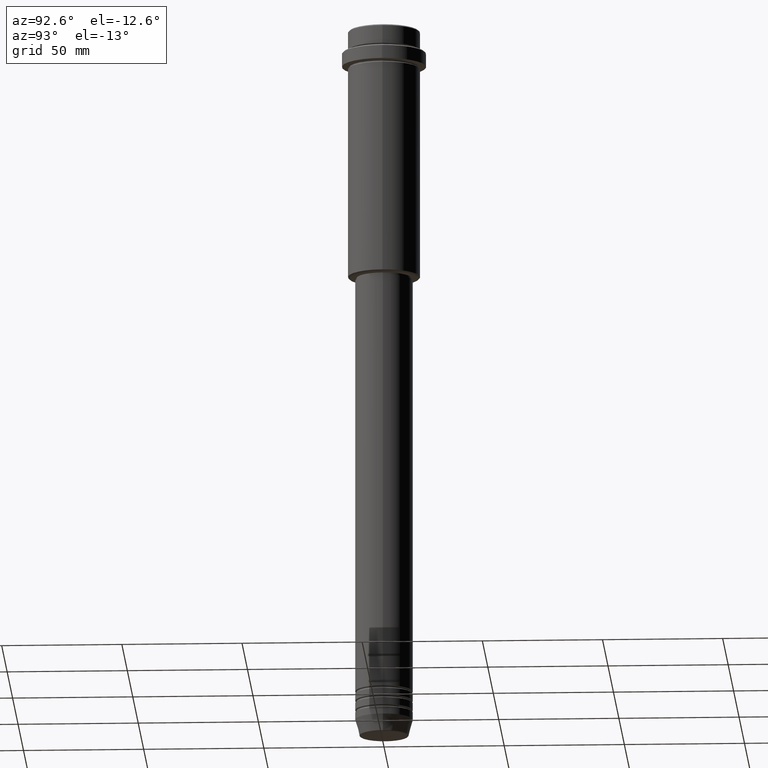
[diagram: clean part render]
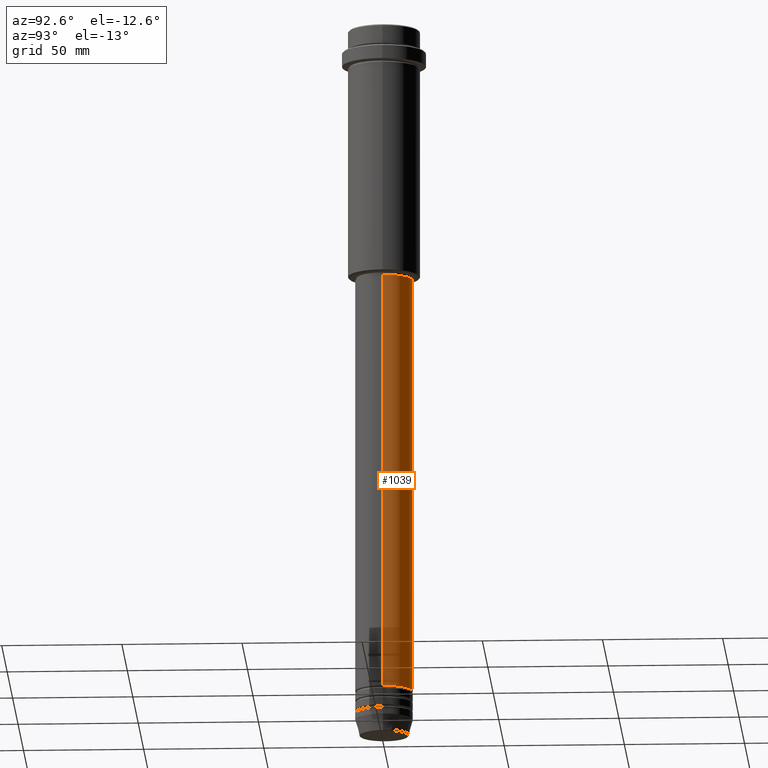
[diagram: same view with one face highlighted and labeled with its STEP entity id]
A machine part, auxiliary view. The second image highlights one B-rep face of the part: STEP entity #1039.
In plain terms, the highlighted cylindrical surface (edge-blend (fillet) strip) has radius 12 mm, axis along (-0, -0, 1).
Its self-contained STEP definition (entity closure, byte-faithful):
#23 = EDGE_CURVE ( 'NONE', #748, #1368, #757, .T. ) ;
#52 = EDGE_CURVE ( 'NONE', #401, #372, #85, .T. ) ;
#85 = LINE ( 'NONE', #1393, #981 ) ;
#128 = ORIENTED_EDGE ( 'NONE', *, *, #484, .T. ) ;
#149 = CARTESIAN_POINT ( 'NONE',  ( -11.99999999999999822, 1.469576158976823750E-15, -105.9999999999999289 ) ) ;
#191 = CARTESIAN_POINT ( 'NONE',  ( -12.00000000000000000, 1.469576158976823947E-15, 0.000000000000000000 ) ) ;
#217 = DIRECTION ( 'NONE',  ( -0.000000000000000000, -0.000000000000000000, 1.000000000000000000 ) ) ;
#367 = AXIS2_PLACEMENT_3D ( 'NONE', #838, #1080, #1072 ) ;
#372 = VERTEX_POINT ( 'NONE', #1266 ) ;
#401 = VERTEX_POINT ( 'NONE', #1035 ) ;
#414 = CIRCLE ( 'NONE', #367, 12.00000000000000000 ) ;
#465 = DIRECTION ( 'NONE',  ( -0.000000000000000000, -0.000000000000000000, 1.000000000000000000 ) ) ;
#479 = VECTOR ( 'NONE', #867, 1000.000000000000000 ) ;
#484 = EDGE_CURVE ( 'NONE', #401, #748, #414, .T. ) ;
#613 = AXIS2_PLACEMENT_3D ( 'NONE', #996, #465, #1241 ) ;
#698 = EDGE_LOOP ( 'NONE', ( #128, #935, #1306, #1091 ) ) ;
#723 = CIRCLE ( 'NONE', #1060, 11.99999999999999822 ) ;
#748 = VERTEX_POINT ( 'NONE', #904 ) ;
#757 = LINE ( 'NONE', #191, #479 ) ;
#809 = DIRECTION ( 'NONE',  ( 1.000000000000000000, 0.000000000000000000, 0.000000000000000000 ) ) ;
#838 = CARTESIAN_POINT ( 'NONE',  ( 0.000000000000000000, 0.000000000000000000, -280.9999999999999432 ) ) ;
#867 = DIRECTION ( 'NONE',  ( -0.000000000000000000, -0.000000000000000000, 1.000000000000000000 ) ) ;
#904 = CARTESIAN_POINT ( 'NONE',  ( -12.00000000000000000, 1.469576158976823947E-15, -280.9999999999999432 ) ) ;
#935 = ORIENTED_EDGE ( 'NONE', *, *, #23, .T. ) ;
#945 = CARTESIAN_POINT ( 'NONE',  ( 0.000000000000000000, 0.000000000000000000, -105.9999999999999289 ) ) ;
#981 = VECTOR ( 'NONE', #217, 1000.000000000000000 ) ;
#996 = CARTESIAN_POINT ( 'NONE',  ( 0.000000000000000000, 0.000000000000000000, 0.000000000000000000 ) ) ;
#1035 = CARTESIAN_POINT ( 'NONE',  ( 12.00000000000000000, 0.000000000000000000, -280.9999999999999432 ) ) ;
#1039 = ADVANCED_FACE ( 'NONE', ( #1328 ), #1231, .T. ) ;
#1060 = AXIS2_PLACEMENT_3D ( 'NONE', #945, #1363, #809 ) ;
#1072 = DIRECTION ( 'NONE',  ( 1.000000000000000000, 0.000000000000000000, 0.000000000000000000 ) ) ;
#1080 = DIRECTION ( 'NONE',  ( -0.000000000000000000, -0.000000000000000000, 1.000000000000000000 ) ) ;
#1091 = ORIENTED_EDGE ( 'NONE', *, *, #52, .F. ) ;
#1210 = EDGE_CURVE ( 'NONE', #372, #1368, #723, .T. ) ;
#1231 = CYLINDRICAL_SURFACE ( 'NONE', #613, 12.00000000000000000 ) ;
#1241 = DIRECTION ( 'NONE',  ( 1.000000000000000000, 0.000000000000000000, 0.000000000000000000 ) ) ;
#1266 = CARTESIAN_POINT ( 'NONE',  ( 11.99999999999999822, 0.000000000000000000, -105.9999999999999289 ) ) ;
#1306 = ORIENTED_EDGE ( 'NONE', *, *, #1210, .F. ) ;
#1328 = FACE_OUTER_BOUND ( 'NONE', #698, .T. ) ;
#1363 = DIRECTION ( 'NONE',  ( -0.000000000000000000, -0.000000000000000000, 1.000000000000000000 ) ) ;
#1368 = VERTEX_POINT ( 'NONE', #149 ) ;
#1393 = CARTESIAN_POINT ( 'NONE',  ( 12.00000000000000000, 0.000000000000000000, 0.000000000000000000 ) ) ;